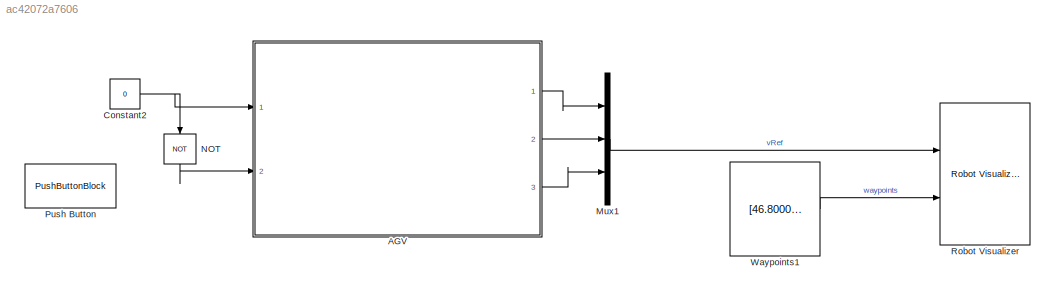
MODEL slx_ac42072a7606
KIND model
CONFIG AbsTol = auto
CONFIG EnableMultiTasking = on
CONFIG FixedStep = 0.1
CONFIG MaxStep = auto
CONFIG MinStep = auto
CONFIG RelTol = 1e-3
CONFIG SampleTimeConstraint = Unconstrained
CONFIG SolverName = FixedStepAuto
CONFIG StartTime = 0.0
CONFIG StopTime = inf
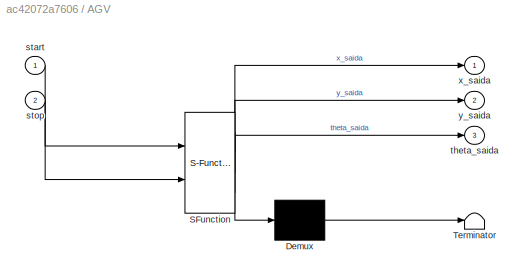
BLOCK [SubSystem] AGV
  ErrorFcn = Stateflow.Translate.translate
  PermitHierarchicalResolution = ExplicitOnly
  Ports = [2, 3]
  RequestExecContextInheritance = off
  SFBlockType = Chart
  TreatAsAtomicUnit = on
BLOCK [Demux] AGV/ Demux 
  Outputs = 1
  Ports = [1, 1]
BLOCK [S-Function] AGV/ SFunction 
  EnableBusSupport = on
  FunctionName = sf_sfun
  PortCounts = [2 4]
  Ports = [2, 4]
  SFcnIsStateOwnerBlock = off
  SFunctionDeploymentMode = off
  Tag = Stateflow S-Function 3
BLOCK [Terminator] AGV/ Terminator 
BLOCK [Inport] AGV/start
BLOCK [Inport] AGV/stop
  Port = 2
BLOCK [Outport] AGV/theta_saida
  Port = 3
BLOCK [Outport] AGV/x_saida
BLOCK [Outport] AGV/y_saida
  Port = 2
BLOCK [Constant] Constant2
  Value = 0
BLOCK [Mux] Mux1
  DisplayOption = bar
  Inputs = 3
  Ports = [3, 1]
BLOCK [Logic] NOT
  AllPortsSameDT = off
  IconShape = distinctive
  NameLocation = left
  Operator = NOT
  OutDataTypeStr = boolean
  Ports = [1, 1]
BLOCK [PushButtonBlock] Push Button
  ButtonText = start
  ButtonType = Latch
  OffValue = 0.000000
BLOCK [Reference] Robot Visualizer  REF=mobileRoboticsLib/Environments/Robot Visualizer
  Ports = [2]
  SourceBlock = mobileRoboticsLib/Environments/Robot Visualizer
  SourceProductName = Mobile Robotics Simulation Toolbox
  SourceType = Visualizer2D
BLOCK [Constant] Waypoints1
  Value = [46.8000   10.8000;\n   45.0000   10.8000;\n   43.2000   10.8000;\n   41.4000   10.8000;\n   39.6000   10.8000;\n   37.8000   12.6000;\n   36.0000   12.6000;\n   34.2000   12.6000;\n   32.4000   14.4000;\n   30.6000   14.4000;\n   30.6000   16.2000;\n   28.8000   16.2000;\n   27.0000   18.0000;\n   25.2000   18.0000;\n   25.2000   19.8000;\n   23.4000   19.8000;\n   21.6000   21.6000;\n   19.8000   23.4000;\n   19....<+2414ch>
LINE AGV:1 -> Mux1:1
LINE AGV:2 -> Mux1:2
LINE AGV:3 -> Mux1:3
NET Constant2:1 -> AGV:1, NOT:1
LINE Mux1:1 -> Robot Visualizer:1
LINE NOT:1 -> AGV:2
LINE Waypoints1:1 -> Robot Visualizer:2
note: NET lines group one-source signal fan-out (src -> all destinations, sorted); 1:1 wires keep LINE
CHART AGV states=5 transitions=14
  STATE_LABEL 'STRAIGHT\ndu:\nx_dot = a*cos(theta);\ny_dot = a*sin(theta);\ntheta_dot = 0;\nx_saida = x;\ny_saida = y;\ntheta_saida = theta;\n'
  STATE_LABEL 'RIGHT\ndu:\nx_dot = a*cos(theta);\ny_dot = a*sin(theta);\ntheta_dot = -pi;\nx_saida = x;\ny_saida = y;\ntheta_saida = theta;'
  STATE_LABEL 'erro = fct(x1,y1,theta1,ind)'
  STATE_LABEL 'SCRIPT:\nfunction erro = fct(x1,y1,theta1,ind)\n\n        u=[46.8000   10.8000;\n           45.0000   10.8000;\n           43.2000   10.8000;\n           41.4000   10.8000;\n           39.6000   10.8000;\n           37.8000   12.6000;\n           36.0000   12.6000;\n           34.2000   12.6000;\n           32.4000   14.4000;\n           30.6000   14.4000;\n           30.6000   16.2000;\n           28.8000   16...<+3608ch>'
  STATE_LABEL 'LEFT\ndu:\nx_dot = a*cos(theta);\ny_dot = a*sin(theta);\ntheta_dot = pi;\nx_saida = x;\ny_saida = y;\ntheta_saida = theta;'
  STATE_LABEL 'STOP\ndu:\nx_dot = 0;\ny_dot = 0;\ntheta_dot = 0;\nx_saida = x;\ny_saida = y;\ntheta_saida = theta;\n'
CHART  states=0 transitions=0
